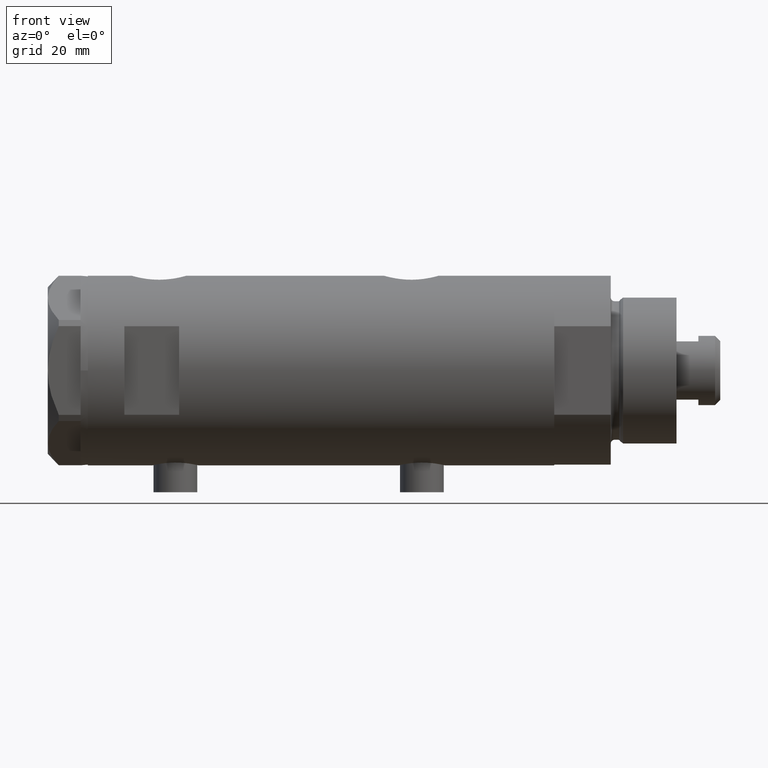
[diagram: clean part render]
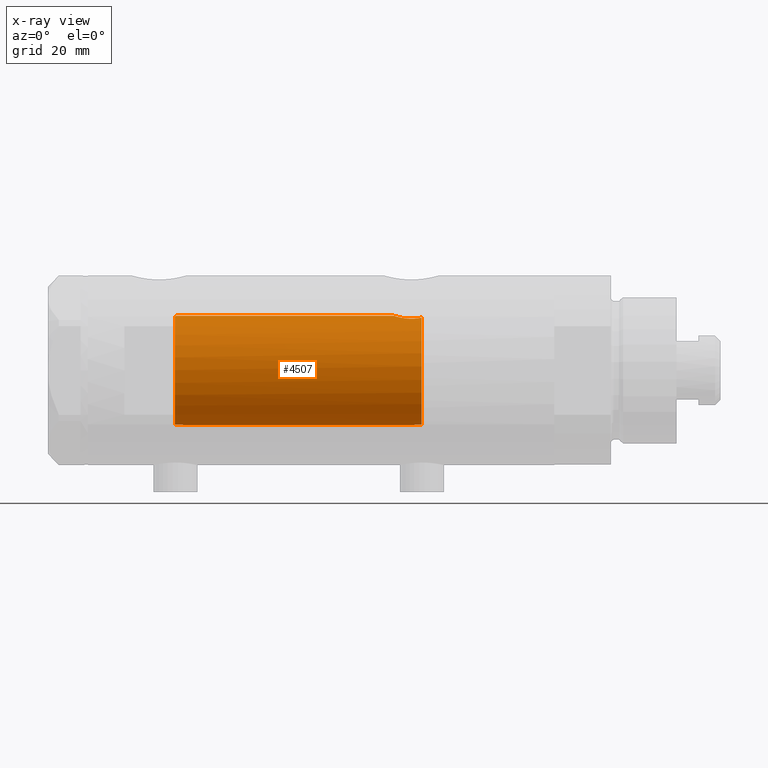
[diagram: x-ray — body ghosted, one internal face saturated and labeled with its STEP entity id]
A machine part, front view, then the same camera in x-ray: the body is ghosted and one INTERNAL B-rep face — a face not visible from any outside direction — is saturated and labeled: STEP entity #4507.
In plain terms, the highlighted cylindrical surface (partial cylindrical patch) has radius 15 mm, axis along (1, 0, -0).
Its self-contained STEP definition (entity closure, byte-faithful):
#1 = DIRECTION ( 'NONE',  ( -0.000000000000000000, -0.000000000000000000, -1.000000000000000000 ) ) ;
#3 = CARTESIAN_POINT ( 'NONE',  ( 14.25977760983849230, -4.654557688538887739, -23.31736805897653042 ) ) ;
#9 = DIRECTION ( 'NONE',  ( -1.000000000000000000, 0.000000000000000000, 0.000000000000000000 ) ) ;
#74 = DIRECTION ( 'NONE',  ( 0.000000000000000000, 0.000000000000000000, -1.000000000000000000 ) ) ;
#192 = CARTESIAN_POINT ( 'NONE',  ( -14.85859683553260346, -2.056701007386132041, 38.51843972450895848 ) ) ;
#225 = CARTESIAN_POINT ( 'NONE',  ( -15.00000000000000000, 3.061618115923464028E-16, 37.45000000000000284 ) ) ;
#279 = CARTESIAN_POINT ( 'NONE',  ( 14.82638779339053769, -2.275571356824481750, 40.15000000000000568 ) ) ;
#284 = CARTESIAN_POINT ( 'NONE',  ( 15.00000000000000000, 5.959273468635536151E-16, -19.88500000000000156 ) ) ;
#316 = VERTEX_POINT ( 'NONE', #4135 ) ;
#335 = CARTESIAN_POINT ( 'NONE',  ( -15.00000000000000000, 0.000000000000000000, -25.15000000000000568 ) ) ;
#366 = CARTESIAN_POINT ( 'NONE',  ( -14.96154495298569032, -1.083625483837068026, -25.39138979525010598 ) ) ;
#420 = CARTESIAN_POINT ( 'NONE',  ( 15.00000000000000000, -0.2216692655473424256, -19.88499999999999801 ) ) ;
#425 = CYLINDRICAL_SURFACE ( 'NONE', #3924, 15.00000000000000000 ) ;
#474 = CARTESIAN_POINT ( 'NONE',  ( 14.30772250772360188, -4.505024017690379523, -22.90010806953218037 ) ) ;
#491 = CARTESIAN_POINT ( 'NONE',  ( -14.79155164274525980, -2.491987158875424768, 40.15000000000000568 ) ) ;
#602 = DIRECTION ( 'NONE',  ( 0.000000000000000000, 0.000000000000000000, 1.000000000000000000 ) ) ;
#612 = CARTESIAN_POINT ( 'NONE',  ( -14.99695275358354252, -0.3460123648701027288, 37.46810396824249523 ) ) ;
#618 = CARTESIAN_POINT ( 'NONE',  ( 14.87720562886504538, -1.924385875533401125, 39.97741675737692901 ) ) ;
#742 = CARTESIAN_POINT ( 'NONE',  ( 14.98404828787190191, -0.7909490205761877668, 39.63356230794191504 ) ) ;
#760 = CARTESIAN_POINT ( 'NONE',  ( 15.00000000000000000, 1.836970198721029194E-15, 63.95000000000000995 ) ) ;
#785 = CARTESIAN_POINT ( 'NONE',  ( 14.64727859494137263, -3.248701865452403581, -21.10174013696654782 ) ) ;
#816 = CARTESIAN_POINT ( 'NONE',  ( 14.19858338301463085, -4.837406781463695182, -24.18614104090498884 ) ) ;
#865 = CARTESIAN_POINT ( 'NONE',  ( 14.49994286062941207, -3.853373987417221702, -21.74743896782911534 ) ) ;
#971 = ORIENTED_EDGE ( 'NONE', *, *, #4933, .T. ) ;
#974 = CARTESIAN_POINT ( 'NONE',  ( 14.20926245015526135, -4.806160851464704287, -23.96377327795615031 ) ) ;
#983 = CARTESIAN_POINT ( 'NONE',  ( -14.82167156606024783, -2.306788152106016287, 38.97115114601642460 ) ) ;
#1008 = CARTESIAN_POINT ( 'NONE',  ( -14.95581892566389115, -1.161262481484112152, 37.72937042154403997 ) ) ;
#1063 = CARTESIAN_POINT ( 'NONE',  ( -14.99740058099025930, -0.3199290537848247240, -25.16546469274587139 ) ) ;
#1089 = CARTESIAN_POINT ( 'NONE',  ( -14.92627313122705779, -1.491421694539937226, -25.63730514635739866 ) ) ;
#1190 = CARTESIAN_POINT ( 'NONE',  ( 14.25856516724843814, -4.658255869285517825, -26.17044016644936733 ) ) ;
#1201 = EDGE_CURVE ( 'NONE', #4182, #1440, #2433, .T. ) ;
#1213 = CARTESIAN_POINT ( 'NONE',  ( 14.39424372609267522, -4.221002267729139668, -27.17893131093289938 ) ) ;
#1267 = EDGE_CURVE ( 'NONE', #1890, #3937, #1558, .T. ) ;
#1375 = CARTESIAN_POINT ( 'NONE',  ( -14.80379558280398555, -2.418854260473059625, 39.29535450491658821 ) ) ;
#1410 = CARTESIAN_POINT ( 'NONE',  ( -14.91608554980932055, -1.590576762727819116, 38.01369720243329198 ) ) ;
#1414 = DIRECTION ( 'NONE',  ( -0.000000000000000000, -0.000000000000000000, -1.000000000000000000 ) ) ;
#1417 = CARTESIAN_POINT ( 'NONE',  ( 14.93900636919599911, -1.364886281976677163, 39.77622504971314044 ) ) ;
#1440 = VERTEX_POINT ( 'NONE', #3970 ) ;
#1558 = B_SPLINE_CURVE_WITH_KNOTS ( 'NONE', 3,
 ( #4865, #4838, #1213, #1661, #2454, #1190, #2847, #3662, #2821, #2791, #4421, #816, #974, #1629, #3, #474, #4393, #2870, #865, #785, #2431, #3793, #4029, #3611, #2082, #4190, #2482, #2584, #420, #2972 ),
 .UNSPECIFIED., .F., .F.,
 ( 4, 2, 2, 2, 2, 2, 2, 2, 2, 2, 2, 2, 2, 2, 4 ),
 ( 0.004672505804584291961, 0.005337629501999298885, 0.006002753199414305810, 0.006667876896829313602, 0.007333000594244319659, 0.007998124291659327451, 0.008663247989074335242, 0.009328371686489341300, 0.009993495383904347357, 0.01132374277873436988, 0.01265399017356439067, 0.01331911387097940366, 0.01398423756839441666, 0.01464936126580942966, 0.01531448496322444265 ),
 .UNSPECIFIED. ) ;
#1629 = CARTESIAN_POINT ( 'NONE',  ( 14.23984499268010673, -4.714778477509576682, -23.53008258614764614 ) ) ;
#1637 = VECTOR ( 'NONE', #1, 1000.000000000000000 ) ;
#1640 = VERTEX_POINT ( 'NONE', #491 ) ;
#1661 = CARTESIAN_POINT ( 'NONE',  ( 14.33349657381506681, -4.422893686125039636, -26.78827841538882737 ) ) ;
#1772 = LINE ( 'NONE', #2641, #4081 ) ;
#1793 = CARTESIAN_POINT ( 'NONE',  ( -14.87260732106556560, -1.954338522023925773, 38.38146298750767471 ) ) ;
#1851 = CARTESIAN_POINT ( 'NONE',  ( 14.82638779339053769, -2.275571356824481750, 40.15000000000000568 ) ) ;
#1872 = EDGE_CURVE ( 'NONE', #316, #4182, #1772, .T. ) ;
#1890 = VERTEX_POINT ( 'NONE', #2253 ) ;
#1936 = DIRECTION ( 'NONE',  ( -0.000000000000000000, -0.000000000000000000, -1.000000000000000000 ) ) ;
#1952 = ORIENTED_EDGE ( 'NONE', *, *, #2946, .F. ) ;
#2017 = ORIENTED_EDGE ( 'NONE', *, *, #1872, .F. ) ;
#2022 = ORIENTED_EDGE ( 'NONE', *, *, #2205, .T. ) ;
#2082 = CARTESIAN_POINT ( 'NONE',  ( 14.92307637240703677, -1.532123959568890248, -20.12726557582076126 ) ) ;
#2105 = VERTEX_POINT ( 'NONE', #3504 ) ;
#2125 = DIRECTION ( 'NONE',  ( 1.000000000000000000, 0.000000000000000000, 0.000000000000000000 ) ) ;
#2157 = ORIENTED_EDGE ( 'NONE', *, *, #1267, .F. ) ;
#2194 = CARTESIAN_POINT ( 'NONE',  ( -14.83314878996174357, -2.232849285003168482, 38.81256080311607803 ) ) ;
#2205 = EDGE_CURVE ( 'NONE', #1640, #3398, #2810, .T. ) ;
#2217 = CARTESIAN_POINT ( 'NONE',  ( -15.00000000000000355, -0.1716226368084263487, 37.45000000000001705 ) ) ;
#2253 = CARTESIAN_POINT ( 'NONE',  ( 14.46277203719950677, -3.978470183374504199, -27.55000000000000426 ) ) ;
#2377 = CARTESIAN_POINT ( 'NONE',  ( -14.83575030094399771, -2.214690538106014017, -26.47938890130203404 ) ) ;
#2431 = CARTESIAN_POINT ( 'NONE',  ( 14.72015646623405871, -2.909233045280604113, -20.82572079632733519 ) ) ;
#2433 = B_SPLINE_CURVE_WITH_KNOTS ( 'NONE', 3,
 ( #3632, #5083, #1063, #2675, #2720, #366, #4352, #1089, #3976, #3115, #3875, #3558, #2377, #5182, #3167, #3899 ),
 .UNSPECIFIED., .F., .F.,
 ( 4, 2, 2, 2, 2, 2, 2, 4 ),
 ( 9.232380109166849670E-20, 0.0004769863284873123192, 0.0009539726569746245300, 0.001430958985461936632, 0.001907945313949248843, 0.002384931642436560837, 0.002861917970923873698, 0.003815890627898489013 ),
 .UNSPECIFIED. ) ;
#2454 = CARTESIAN_POINT ( 'NONE',  ( 14.30602371879161439, -4.510400617436905790, -26.58665028800271557 ) ) ;
#2482 = CARTESIAN_POINT ( 'NONE',  ( 14.97537530859971966, -0.8874117095427782598, -19.96137464055827948 ) ) ;
#2584 = CARTESIAN_POINT ( 'NONE',  ( 14.99508877558422704, -0.4434836953032585405, -19.90007684727664028 ) ) ;
#2615 = CARTESIAN_POINT ( 'NONE',  ( -14.97699254061832796, -0.8454257663520248212, 37.59097868826834343 ) ) ;
#2631 = CARTESIAN_POINT ( 'NONE',  ( 0.000000000000000000, 0.000000000000000000, 40.15000000000000568 ) ) ;
#2641 = CARTESIAN_POINT ( 'NONE',  ( -15.00000000000000000, 0.000000000000000000, 63.95000000000000995 ) ) ;
#2675 = CARTESIAN_POINT ( 'NONE',  ( -14.98749134158487095, -0.6320459414166007539, -25.22599747929445257 ) ) ;
#2720 = CARTESIAN_POINT ( 'NONE',  ( -14.98007298506453111, -0.7870736506658164711, -25.27174868555716003 ) ) ;
#2750 = CARTESIAN_POINT ( 'NONE',  ( 15.00000000000000000, 0.000000000000000000, 39.58500000000000085 ) ) ;
#2775 = CARTESIAN_POINT ( 'NONE',  ( 0.000000000000000000, 0.000000000000000000, 63.95000000000000995 ) ) ;
#2791 = CARTESIAN_POINT ( 'NONE',  ( 14.18781489734108270, -4.868896704194245473, -24.85545969036061464 ) ) ;
#2810 = CIRCLE ( 'NONE', #4252, 15.00000000000000000 ) ;
#2821 = CARTESIAN_POINT ( 'NONE',  ( 14.19797987272029438, -4.839174951492910104, -25.29741451501410765 ) ) ;
#2847 = CARTESIAN_POINT ( 'NONE',  ( 14.23846660849503465, -4.718934182878723682, -25.95401121469808459 ) ) ;
#2870 = CARTESIAN_POINT ( 'NONE',  ( 14.42796883436190569, -4.108435602805831977, -22.10726922759031510 ) ) ;
#2946 = EDGE_CURVE ( 'NONE', #2105, #3398, #4057, .T. ) ;
#2972 = CARTESIAN_POINT ( 'NONE',  ( 15.00000000000000000, 5.959273468635536151E-16, -19.88500000000000156 ) ) ;
#2980 = CARTESIAN_POINT ( 'NONE',  ( -14.78989771875219539, -2.501882951377200737, 39.80631597653683684 ) ) ;
#3014 = CARTESIAN_POINT ( 'NONE',  ( -14.94313933514151849, -1.312299271472199491, 37.81526966946925228 ) ) ;
#3115 = CARTESIAN_POINT ( 'NONE',  ( -14.88625129008227077, -1.847379311388060108, -25.95812992433159749 ) ) ;
#3127 = B_SPLINE_CURVE_WITH_KNOTS ( 'NONE', 3,
 ( #3377, #4607, #2980, #4972, #1375, #983, #2194, #192, #1793, #5006, #1410, #3014, #1008, #2615, #4219, #612, #2217, #225 ),
 .UNSPECIFIED., .F., .F.,
 ( 4, 2, 2, 2, 2, 2, 2, 2, 4 ),
 ( 0.003715686714229632630, 0.004229951999599991345, 0.004744217284970349627, 0.005258482570340707908, 0.005772747855711066189, 0.006287013141081424471, 0.006801278426451782752, 0.007315543711822141033, 0.007829808997192499315 ),
 .UNSPECIFIED. ) ;
#3167 = CARTESIAN_POINT ( 'NONE',  ( -14.79268570220017409, -2.485279885960841817, -27.23227165314100517 ) ) ;
#3334 = DIRECTION ( 'NONE',  ( -1.000000000000000000, 0.000000000000000000, 0.000000000000000000 ) ) ;
#3377 = CARTESIAN_POINT ( 'NONE',  ( -14.79155164274525980, -2.491987158875424768, 40.15000000000000568 ) ) ;
#3398 = VERTEX_POINT ( 'NONE', #1851 ) ;
#3464 = CARTESIAN_POINT ( 'NONE',  ( 14.85289483991917336, -2.102865829523694607, 40.05860377881607093 ) ) ;
#3500 = ORIENTED_EDGE ( 'NONE', *, *, #3545, .T. ) ;
#3504 = CARTESIAN_POINT ( 'NONE',  ( 15.00000000000000000, 0.000000000000000000, 39.58500000000000085 ) ) ;
#3524 = EDGE_CURVE ( 'NONE', #1640, #316, #3127, .T. ) ;
#3545 = EDGE_CURVE ( 'NONE', #2105, #3937, #3556, .T. ) ;
#3556 = LINE ( 'NONE', #760, #1637 ) ;
#3558 = CARTESIAN_POINT ( 'NONE',  ( -14.84760220014584498, -2.134792770974418108, -26.33921818480346033 ) ) ;
#3611 = CARTESIAN_POINT ( 'NONE',  ( 14.90017778876745069, -1.739641523727900596, -20.20130925695125867 ) ) ;
#3632 = CARTESIAN_POINT ( 'NONE',  ( -15.00000000000000000, 0.000000000000000000, -25.15000000000000568 ) ) ;
#3662 = CARTESIAN_POINT ( 'NONE',  ( 14.20819413761015326, -4.809312895991455505, -25.51713251522166104 ) ) ;
#3685 = ORIENTED_EDGE ( 'NONE', *, *, #3524, .F. ) ;
#3722 = CARTESIAN_POINT ( 'NONE',  ( 0.000000000000000000, 0.000000000000000000, -27.55000000000000426 ) ) ;
#3793 = CARTESIAN_POINT ( 'NONE',  ( 14.81710879718117724, -2.343063746046469387, -20.48067662538953471 ) ) ;
#3875 = CARTESIAN_POINT ( 'NONE',  ( -14.87290636797879806, -1.950714596786577326, -26.07831246618854593 ) ) ;
#3899 = CARTESIAN_POINT ( 'NONE',  ( -14.79053751558745944, -2.497999199359361544, -27.55000000000000426 ) ) ;
#3924 = AXIS2_PLACEMENT_3D ( 'NONE', #2775, #1936, #9 ) ;
#3937 = VERTEX_POINT ( 'NONE', #284 ) ;
#3970 = CARTESIAN_POINT ( 'NONE',  ( -14.79053751558745944, -2.497999199359361544, -27.55000000000000426 ) ) ;
#3976 = CARTESIAN_POINT ( 'NONE',  ( -14.91288509639097803, -1.618377549727004316, -25.73790984008952165 ) ) ;
#4003 = CIRCLE ( 'NONE', #4755, 15.00000000000000000 ) ;
#4012 = FACE_OUTER_BOUND ( 'NONE', #4316, .T. ) ;
#4029 = CARTESIAN_POINT ( 'NONE',  ( 14.84733308118440398, -2.144376633039214219, -20.37751912952715472 ) ) ;
#4057 = B_SPLINE_CURVE_WITH_KNOTS ( 'NONE', 3,
 ( #2750, #4731, #742, #1417, #5060, #618, #3464, #279 ),
 .UNSPECIFIED., .F., .F.,
 ( 4, 2, 2, 4 ),
 ( 2.641598245732904660E-19, 0.001182100180564266394, 0.001773150270846399592, 0.002364200361128532789 ),
 .UNSPECIFIED. ) ;
#4081 = VECTOR ( 'NONE', #1414, 1000.000000000000000 ) ;
#4135 = CARTESIAN_POINT ( 'NONE',  ( -15.00000000000000000, 3.061618115923464028E-16, 37.45000000000000284 ) ) ;
#4182 = VERTEX_POINT ( 'NONE', #335 ) ;
#4190 = CARTESIAN_POINT ( 'NONE',  ( 14.96064712090283777, -1.106639041422191605, -20.00738179736371336 ) ) ;
#4219 = CARTESIAN_POINT ( 'NONE',  ( -14.98541608527170332, -0.6823644196029130526, 37.53879464417551759 ) ) ;
#4252 = AXIS2_PLACEMENT_3D ( 'NONE', #2631, #602, #2125 ) ;
#4316 = EDGE_LOOP ( 'NONE', ( #1952, #3500, #2157, #971, #4356, #2017, #3685, #2022 ) ) ;
#4352 = CARTESIAN_POINT ( 'NONE',  ( -14.95054302956255121, -1.224431043437662625, -25.46458290830103977 ) ) ;
#4356 = ORIENTED_EDGE ( 'NONE', *, *, #1201, .F. ) ;
#4393 = CARTESIAN_POINT ( 'NONE',  ( 14.33594561531103473, -4.414979644548147952, -22.69453393419243525 ) ) ;
#4421 = CARTESIAN_POINT ( 'NONE',  ( 14.18786347641749757, -4.868757996482117711, -24.63322300400293230 ) ) ;
#4507 = ADVANCED_FACE ( 'NONE', ( #4012 ), #425, .F. ) ;
#4607 = CARTESIAN_POINT ( 'NONE',  ( -14.78924132900106869, -2.505700361584525471, 39.97913437470933218 ) ) ;
#4731 = CARTESIAN_POINT ( 'NONE',  ( 15.00000000000000178, -0.3999014018875941545, 39.58500000000000085 ) ) ;
#4755 = AXIS2_PLACEMENT_3D ( 'NONE', #3722, #74, #3334 ) ;
#4838 = CARTESIAN_POINT ( 'NONE',  ( 14.42775250319760083, -4.105775281508736718, -27.36911445102908758 ) ) ;
#4865 = CARTESIAN_POINT ( 'NONE',  ( 14.46277203719950677, -3.978470183374504199, -27.55000000000000426 ) ) ;
#4933 = EDGE_CURVE ( 'NONE', #1890, #1440, #4003, .T. ) ;
#4972 = CARTESIAN_POINT ( 'NONE',  ( -14.79723843696374885, -2.458094276708261638, 39.46231574989083413 ) ) ;
#5006 = CARTESIAN_POINT ( 'NONE',  ( -14.90147761301467710, -1.720422196468683440, 38.12794212931562754 ) ) ;
#5060 = CARTESIAN_POINT ( 'NONE',  ( 14.92029983160078466, -1.555365312915176323, 39.83609703141412695 ) ) ;
#5083 = CARTESIAN_POINT ( 'NONE',  ( -15.00000000000000711, -0.1613061104920439637, -25.15000000000001279 ) ) ;
#5182 = CARTESIAN_POINT ( 'NONE',  ( -14.80570803900863908, -2.410056876876584209, -26.91354637206099554 ) ) ;